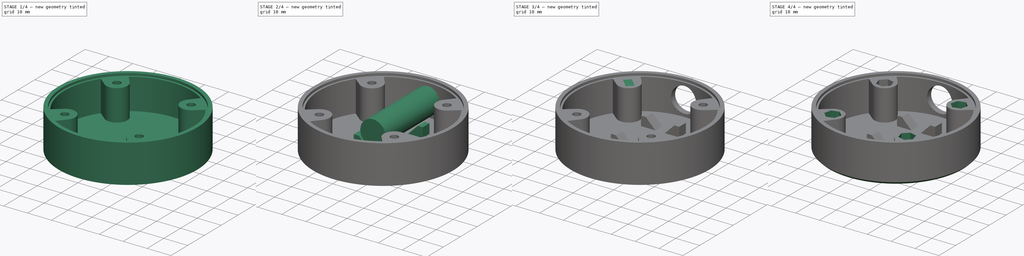
[diagram: build sequence overview — one tinted view per stage of 4, left to right]
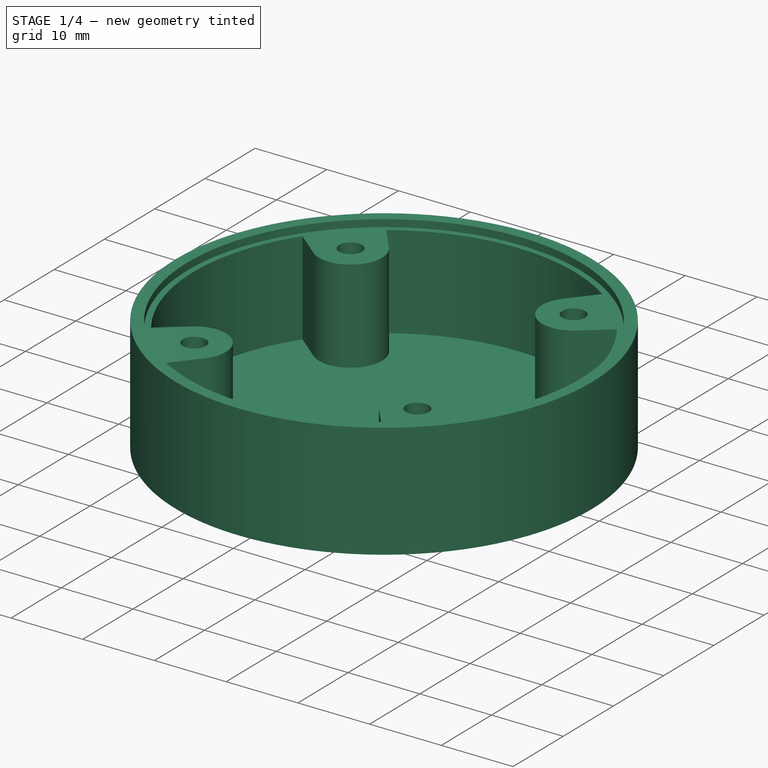
[diagram: stage 1 of 4 — iso view after this stage's code; geometry added in this stage tinted green]
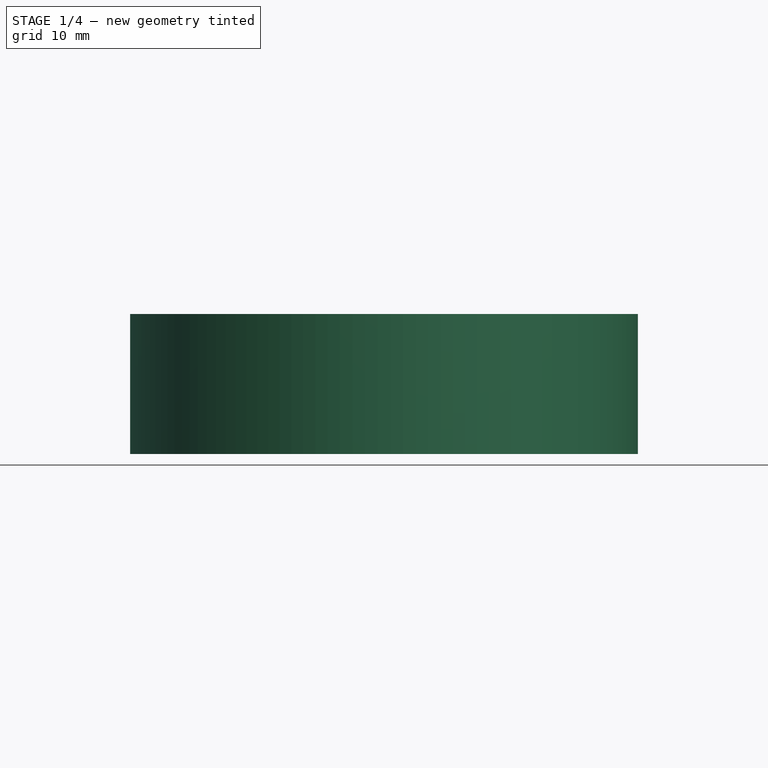
[diagram: stage 1 of 4 — front view after this stage's code; geometry added in this stage tinted green]
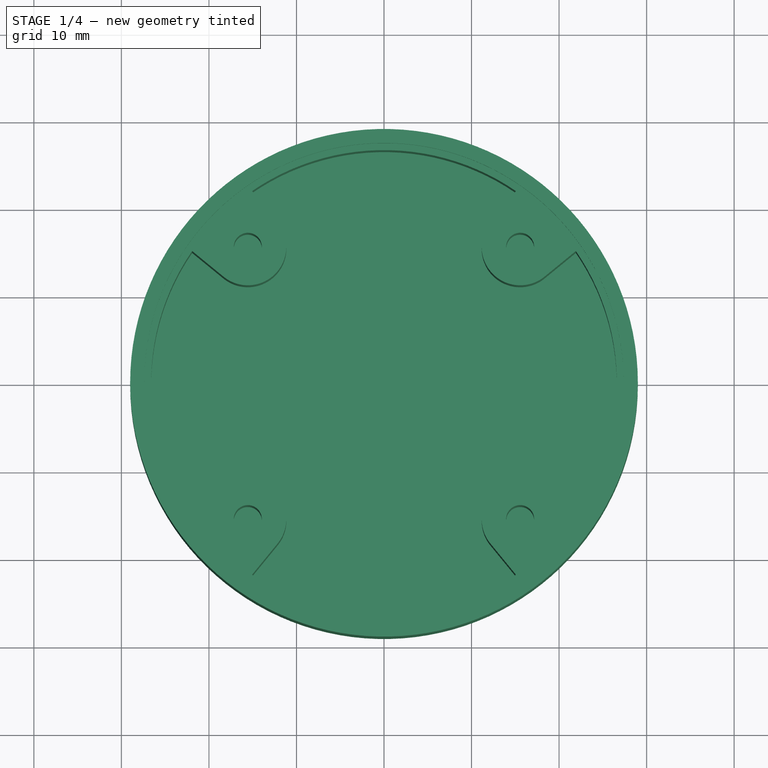
[diagram: stage 1 of 4 — top view after this stage's code; geometry added in this stage tinted green]
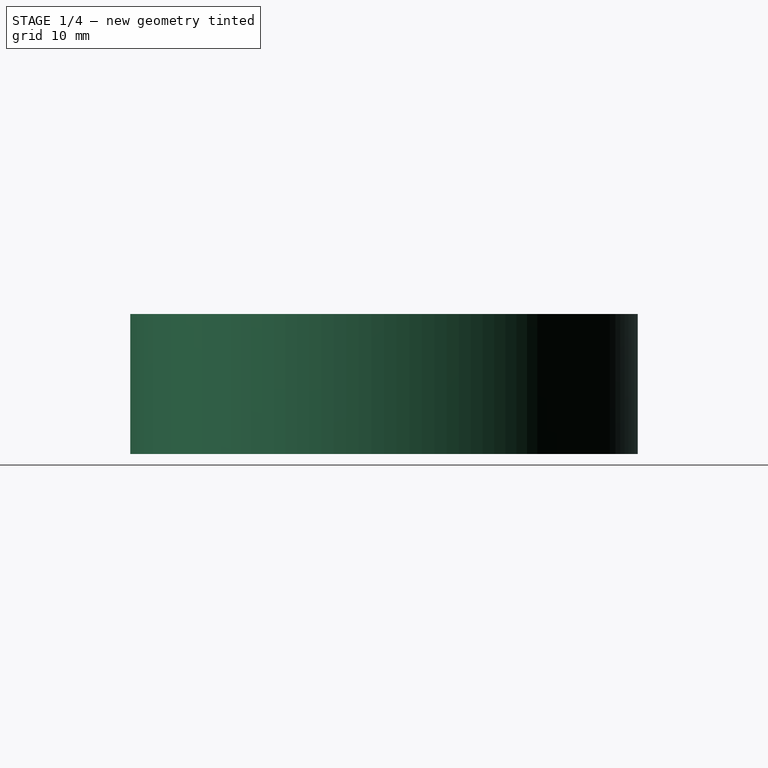
[diagram: stage 1 of 4 — right view after this stage's code; geometry added in this stage tinted green]
FCSTD DOCUMENT  (FreeCAD 0.15R4671 (Git))
Label: laser_enclosure
License: CreativeCommons Attribution-ShareAlike
LicenseURL: http://creativecommons.org/licenses/by-sa/4.0/
objects: Sketcher::SketchObject×5, PartDesign::Pocket×3, PartDesign::Pad×2, Part::Cut×2, Part::Cylinder×1, Part::Prism×1, Part::FeaturePython×1, Part::Chamfer×1
note: 21 computed .brp shape members not serialized (recipe doc carries the construction recipe); baked Part::Feature solids carry a one-line shape summary decoded from their .brp

FEATURE [Sketcher::SketchObject] Sketch011
  sketch-geometry (1):
    g0: Circle CenterX=0 CenterY=0 CenterZ=0 NormalX=0 NormalY=0 NormalZ=1 Radius=29
  constraints (2):
    c: Coincident(g0,g-1)
    c: Radius(g0) = 29
FEATURE [PartDesign::Pad] Pad006
  Length = 16
  Length2 = 100
  Sketch = -> Sketch011
  Type = 0
FEATURE [Sketcher::SketchObject] Sketch
  ExternalGeometry = -> [Pad006]
  Placement = pos=(0,0,16) rot=(0,0,1;0rad)
  Support = -> Pad006 [Face3]
  sketch-geometry (1):
    g0: Circle CenterX=0 CenterY=0 CenterZ=0 NormalX=0 NormalY=0 NormalZ=1 Radius=27.4
  constraints (2):
    c: Coincident(g0,g-1)
    c: Radius(g0) = 27.4
FEATURE [PartDesign::Pocket] Pocket
  Length = 1
  Sketch = -> Sketch
  Type = 0
FEATURE [Sketcher::SketchObject] Sketch012
  ExternalGeometry = -> [Pocket]
  Placement = pos=(0,0,15) rot=(0,0,1;0rad)
  Support = -> Pocket [Face5]
  sketch-geometry (23):
    g0: ArcOfCircle CenterX=0 CenterY=0 CenterZ=0 NormalX=0 NormalY=0 NormalZ=1 Radius=26.6 StartAngle=4.10996 EndAngle=5.31482
    g1: Circle [constr] CenterX=0 CenterY=0 CenterZ=0 NormalX=0 NormalY=0 NormalZ=1 Radius=22
    g2: Circle CenterX=-15.5563 CenterY=15.5563 CenterZ=0 NormalX=0 NormalY=0 NormalZ=1 Radius=1.6
    g3: Circle CenterX=-15.5563 CenterY=-15.5563 CenterZ=0 NormalX=0 NormalY=0 NormalZ=1 Radius=1.6
    g4: Circle CenterX=15.5563 CenterY=-15.5563 CenterZ=0 NormalX=0 NormalY=0 NormalZ=1 Radius=1.6
    g5: Circle CenterX=15.5563 CenterY=15.5563 CenterZ=0 NormalX=0 NormalY=0 NormalZ=1 Radius=1.6
    g6: LineSegment StartX=-21.9174 StartY=-15.0728 StartZ=0 EndX=-18.3409 EndY=-12.1495 EndZ=0
    g7: LineSegment StartX=-15.0728 StartY=-21.9174 StartZ=0 EndX=-12.1495 EndY=-18.3409 EndZ=0
    g8: ArcOfCircle CenterX=-15.5563 CenterY=-15.5563 CenterZ=0 NormalX=0 NormalY=0 NormalZ=1 Radius=4.4 StartAngle=5.59795 EndAngle=8.53921
    g9: LineSegment StartX=15.0728 StartY=21.9174 StartZ=0 EndX=12.1495 EndY=18.3409 EndZ=0
    g10: LineSegment StartX=21.9174 StartY=15.0728 StartZ=0 EndX=18.3409 EndY=12.1495 EndZ=0
    g11: ArcOfCircle CenterX=15.5563 CenterY=15.5563 CenterZ=0 NormalX=0 NormalY=0 NormalZ=1 Radius=4.4 StartAngle=2.45636 EndAngle=5.39762
    g12: ArcOfCircle CenterX=0 CenterY=0 CenterZ=0 NormalX=0 NormalY=0 NormalZ=1 Radius=26.6 StartAngle=0.968367 EndAngle=2.17323
    g13: LineSegment StartX=15.0728 StartY=-21.9174 StartZ=0 EndX=12.1495 EndY=-18.3409 EndZ=0
    g14: LineSegment StartX=21.9174 StartY=-15.0728 StartZ=0 EndX=18.3409 EndY=-12.1495 EndZ=0
    g15: ArcOfCircle CenterX=15.5563 CenterY=-15.5563 CenterZ=0 NormalX=0 NormalY=0 NormalZ=1 Radius=4.4 StartAngle=0.885566 EndAngle=3.82682
    g16: ArcOfCircle CenterX=0 CenterY=0 CenterZ=0 NormalX=0 NormalY=0 NormalZ=1 Radius=26.6 StartAngle=5.68076 EndAngle=6.88561
    g17: LineSegment StartX=-21.9174 StartY=15.0728 StartZ=0 EndX=-18.3409 EndY=12.1495 EndZ=0
    g18: LineSegment StartX=-15.0728 StartY=21.9174 StartZ=0 EndX=-12.1495 EndY=18.3409 EndZ=0
    g19: ArcOfCircle CenterX=-15.5563 CenterY=15.5563 CenterZ=0 NormalX=0 NormalY=0 NormalZ=1 Radius=4.4 StartAngle=4.02716 EndAngle=6.96842
    g20: ArcOfCircle CenterX=0 CenterY=0 CenterZ=0 NormalX=0 NormalY=0 NormalZ=1 Radius=26.6 StartAngle=2.53916 EndAngle=3.74402
    g21: LineSegment [constr] StartX=-19.3747 StartY=19.3747 StartZ=0 EndX=15.5563 EndY=-15.5563 EndZ=0
    g22: LineSegment [constr] StartX=-15.5563 StartY=-15.5563 StartZ=0 EndX=15.5563 EndY=15.5563 EndZ=0
  constraints (71):
    c: Coincident(g0,g-1)
    c: Radius(g0) = 26.6
    c: Coincident(g1,g-1)
    c: Radius(g1) = 22
    c: Equal(g5,g2)
    c: Equal(g2,g3)
    c: Equal(g3,g4)
    c: Radius(g2) = 1.6
    c: Coincident(g8,g3)
    c: Coincident(g8,g7)
    c: Coincident(g8,g6)
    c: Tangent(g6,g8)
    c: Tangent(g7,g8)
    c: Coincident(g0,g7)
    c: Coincident(g20,g6)
    c: Radius(g8) = 4.4
    c: Coincident(g11,g5)
    c: Coincident(g11,g9)
    c: Tangent(g11,g10)
    c: Tangent(g11,g9)
    c: Equal(g0,g12)
    c: Coincident(g16,g10)
    c: Coincident(g12,g9)
    c: Coincident(g0,g12)
    c: Equal(g11,g8)
    c: Coincident(g15,g4)
    c: Coincident(g15,g13)
    c: Coincident(g15,g14)
    c: Tangent(g15,g13)
    c: Tangent(g15,g14)
    c: Equal(g0,g16)
    c: Coincident(g0,g13)
    c: PointOnObject(g16,g14)
    c: Coincident(g0,g16)
    c: Equal(g15,g8)
    c: Coincident(g14,g16)
    c: Coincident(g19,g2)
    c: Coincident(g19,g17)
    c: Coincident(g19,g18)
    c: Tangent(g17,g19)
    c: Tangent(g18,g19)
    c: Equal(g12,g20)
    c: Coincident(g12,g18)
    c: Coincident(g20,g17)
    c: Coincident(g12,g20)
    c: Equal(g8,g19)
    c: PointOnObject(g6,g1)
    c: PointOnObject(g7,g1)
    c: PointOnObject(g3,g1)
    c: PointOnObject(g13,g1)
    c: PointOnObject(g14,g1)
    c: PointOnObject(g4,g1)
    c: PointOnObject(g5,g1)
    c: PointOnObject(g9,g1)
    c: Coincident(g11,g10)
    c: PointOnObject(g10,g1)
    c: PointOnObject(g2,g1)
    c: PointOnObject(g17,g1)
    c: PointOnObject(g18,g1)
    c: PointOnObject(g-1,g21)
    c: Angle(g21,g-1) = 0.785398
    c: PointOnObject(g-1,g22)
    c: Angle(g22) = 0.785398
    c: PointOnObject(g3,g22)
    c: PointOnObject(g5,g22)
    c: PointOnObject(g4,g21)
    c: PointOnObject(g2,g21)
    c: PointOnObject(g21,g-3)
    c: PointOnObject(g22,g1)
    c: PointOnObject(g21,g1)
    c: PointOnObject(g22,g1)
FEATURE [PartDesign::Pocket] Pocket003
  Length = 13
  Sketch = -> Sketch012
  Type = 0
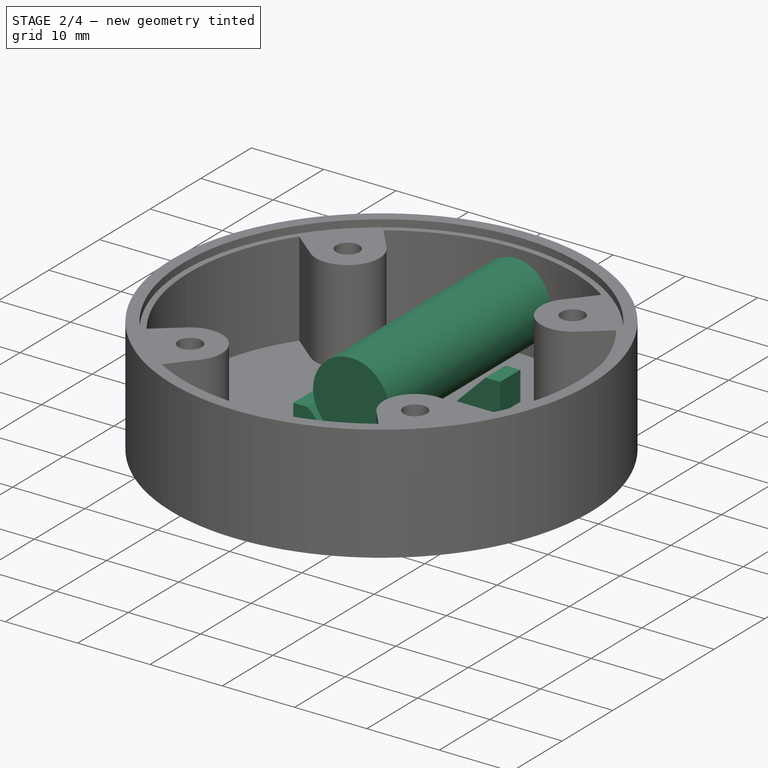
[diagram: stage 2 of 4 — iso view after this stage's code; geometry added in this stage tinted green]
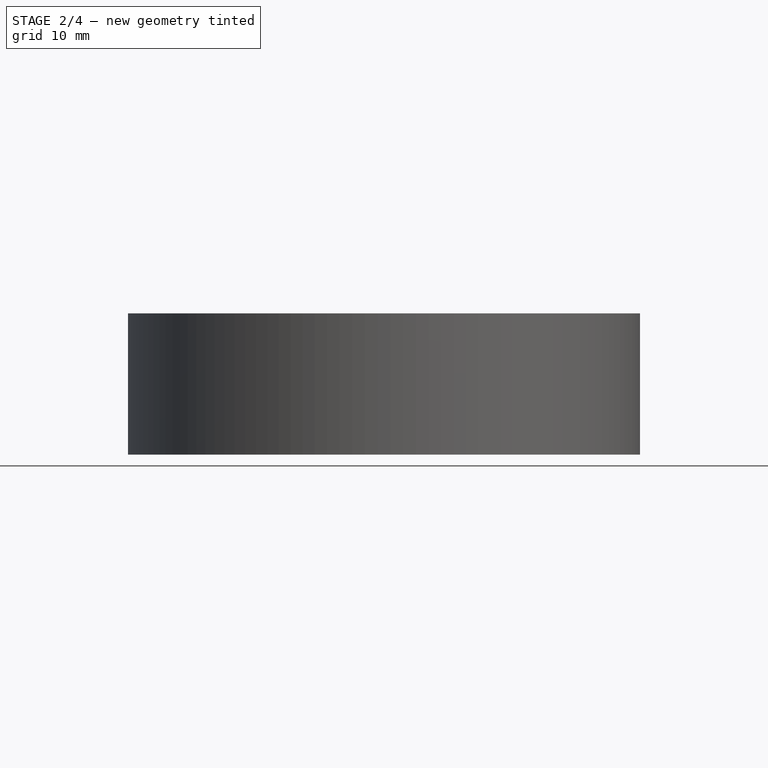
[diagram: stage 2 of 4 — front view after this stage's code; geometry added in this stage tinted green]
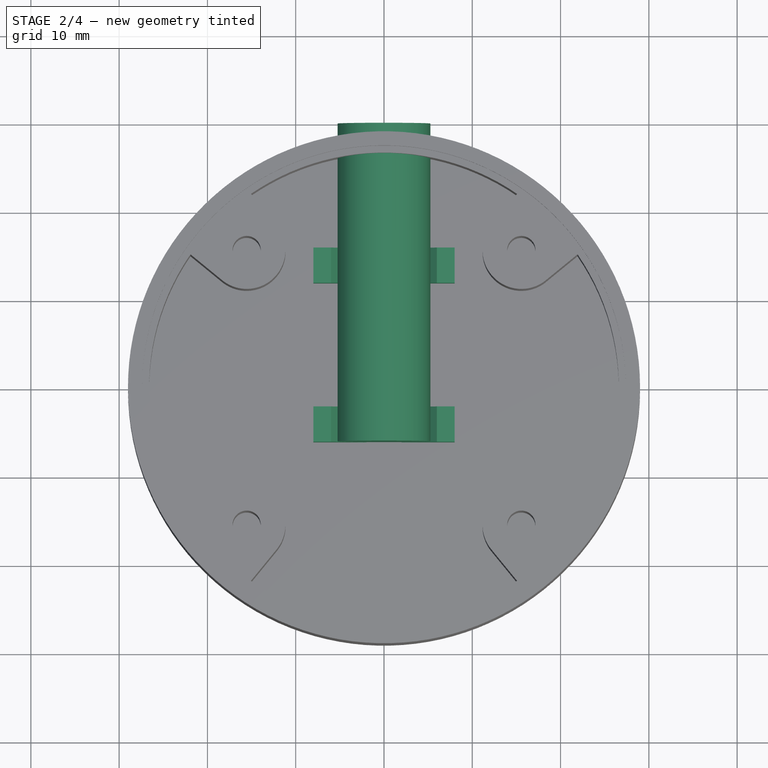
[diagram: stage 2 of 4 — top view after this stage's code; geometry added in this stage tinted green]
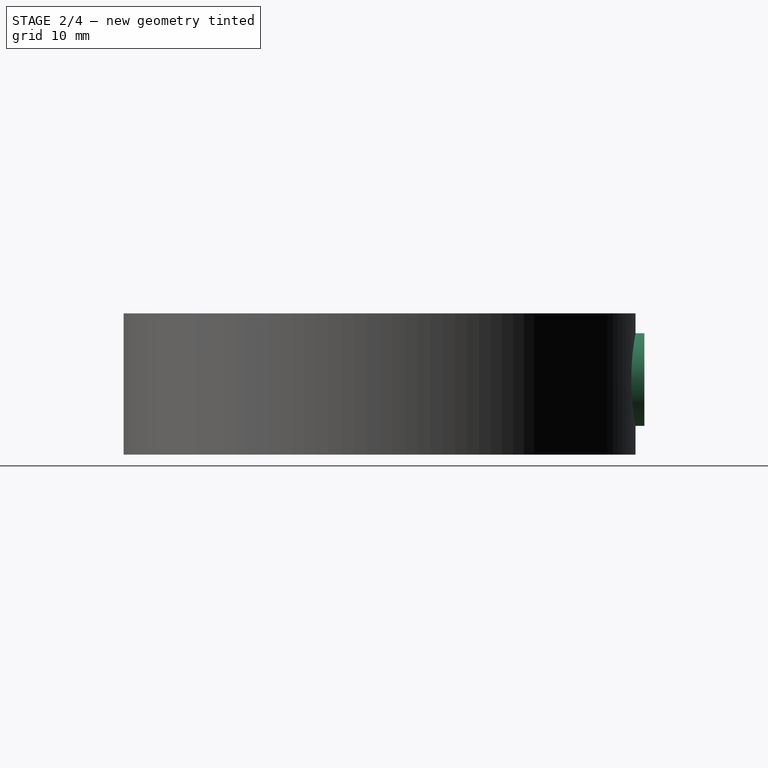
[diagram: stage 2 of 4 — right view after this stage's code; geometry added in this stage tinted green]
FEATURE [Sketcher::SketchObject] Sketch013
  Placement = pos=(0,0,2) rot=(0,0,1;0rad)
  Support = -> Pocket003 [Face27]
  sketch-geometry (9):
    g0: LineSegment StartX=-8 StartY=16 StartZ=0 EndX=8 EndY=16 EndZ=0
    g1: LineSegment StartX=8 StartY=16 StartZ=0 EndX=8 EndY=12 EndZ=0
    g2: LineSegment StartX=8 StartY=12 StartZ=0 EndX=-8 EndY=12 EndZ=0
    g3: LineSegment StartX=-8 StartY=12 StartZ=0 EndX=-8 EndY=16 EndZ=0
    g4: LineSegment StartX=8 StartY=-2 StartZ=0 EndX=8 EndY=-6 EndZ=0
    g5: LineSegment StartX=8 StartY=-6 StartZ=0 EndX=-8 EndY=-6 EndZ=0
    g6: LineSegment StartX=-8 StartY=-6 StartZ=0 EndX=-8 EndY=-2 EndZ=0
    g7: LineSegment [constr] StartX=0 StartY=0 StartZ=0 EndX=0 EndY=27 EndZ=0
    g8: LineSegment StartX=-8 StartY=-2 StartZ=0 EndX=8 EndY=-2 EndZ=0
  constraints (28):
    c: Coincident(g0,g1)
    c: Coincident(g1,g2)
    c: Coincident(g2,g3)
    c: Coincident(g3,g0)
    c: Horizontal(g0)
    c: Horizontal(g2)
    c: Vertical(g1)
    c: Vertical(g3)
    c: Coincident(g4,g5)
    c: Coincident(g5,g6)
    c: Horizontal(g5)
    c: Vertical(g4)
    c: Vertical(g6)
    c: Equal(g0,g2)
    c: Distance(g0) = 16
    c: Equal(g3,g6)
    c: Distance(g1) = 4
    c: PointOnObject(g6,g3)
    c: Coincident(g7,g-1)
    c: Vertical(g7)
    c: DistanceY(g7,g0) = -11
    c: DistanceY(g0,g5) = -22
    c: Coincident(g8,g6)
    c: Coincident(g8,g4)
    c: Horizontal(g8)
    c: Equal(g0,g8)
    c: Symmetric(g0,g0,g7)
    c: DistanceY(g-1,g4) = -2
FEATURE [Part::Cylinder] Cylinder003  label="Laser pointer"
  Angle = 360
  Height = 36
  Placement = pos=(0,30,8.5) rot=(1,0,0;1.5708rad)
  Radius = 5.25
FEATURE [PartDesign::Pad] Pad
  Length = 4
  Length2 = 100
  Sketch = -> Sketch013
  Type = 0
FEATURE [Sketcher::SketchObject] Sketch014
  ExternalGeometry = -> [Pad]
  Placement = pos=(0,-6,0) rot=(1,0,0;1.5708rad)
  Support = -> Pad [Face36]
  sketch-geometry (5):
    g0: Circle [constr] CenterX=0 CenterY=8.5 CenterZ=0 NormalX=0 NormalY=0 NormalZ=1 Radius=6
    g1: LineSegment StartX=5.98528 StartY=6 StartZ=0 EndX=1.98528 EndY=2 EndZ=0
    g2: LineSegment StartX=-5.98528 StartY=6 StartZ=0 EndX=-1.98528 EndY=2 EndZ=0
    g3: LineSegment StartX=-5.98528 StartY=6 StartZ=0 EndX=5.98528 EndY=6 EndZ=0
    g4: LineSegment StartX=-1.98528 StartY=2 StartZ=0 EndX=1.98528 EndY=2 EndZ=0
  constraints (13):
    c: PointOnObject(g0,g-2)
    c: Radius(g0) = 6
    c: Tangent(g1,g0)
    c: Symmetric(g2,g1,g-2)
    c: Symmetric(g2,g1,g-2)
    c: PointOnObject(g1,g-4)
    c: Coincident(g3,g2)
    c: Coincident(g3,g1)
    c: Coincident(g4,g2)
    c: Coincident(g4,g1)
    c: PointOnObject(g-3,g4)
    c: DistanceY(g0,g-3) = -6.5
    c: Angle(g-4,g1) = 0.785398
FEATURE [PartDesign::Pocket] Pocket004
  Length = 24
  Sketch = -> Sketch014
  Type = 0
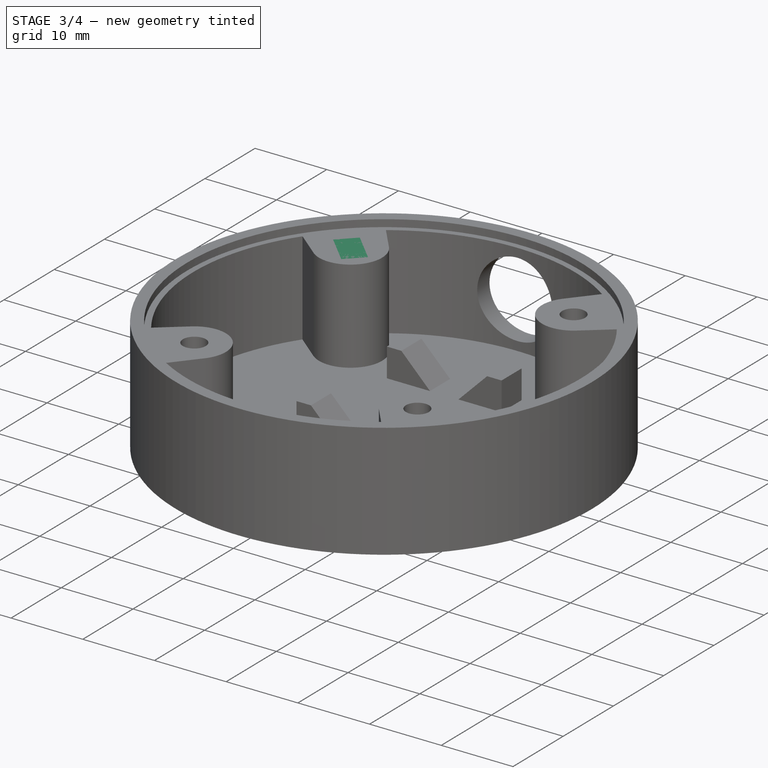
[diagram: stage 3 of 4 — iso view after this stage's code; geometry added in this stage tinted green]
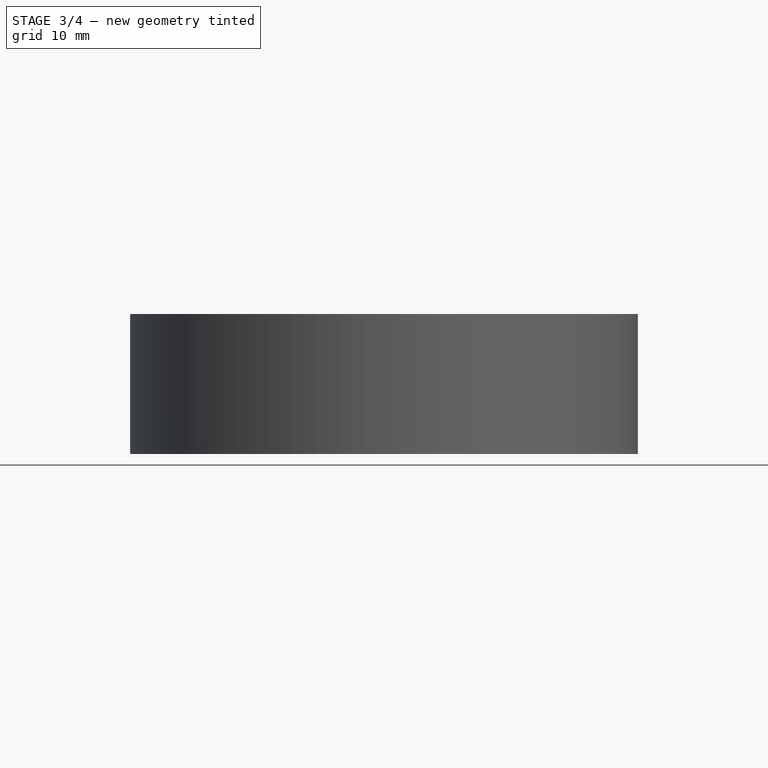
[diagram: stage 3 of 4 — front view after this stage's code; geometry added in this stage tinted green]
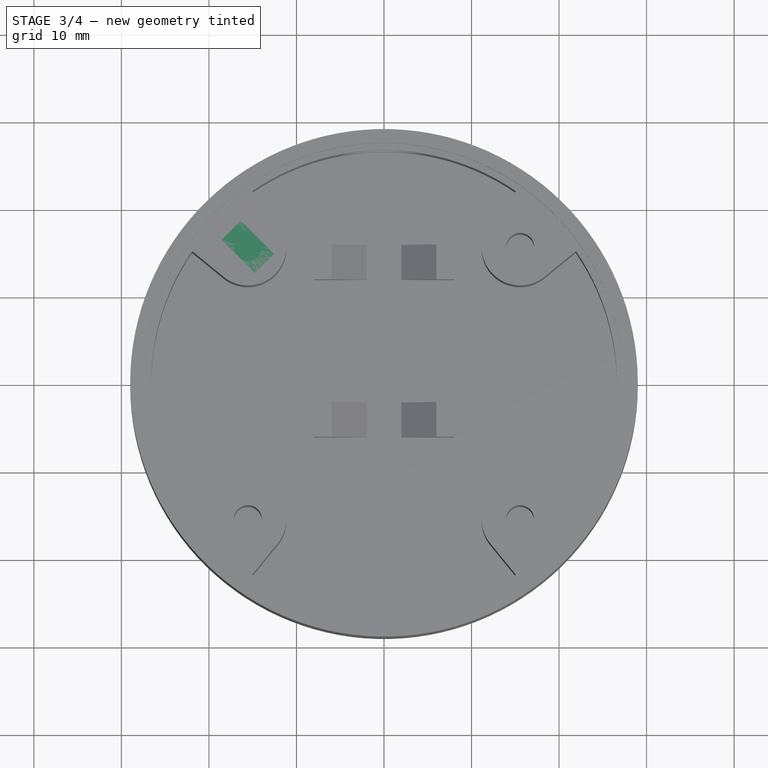
[diagram: stage 3 of 4 — top view after this stage's code; geometry added in this stage tinted green]
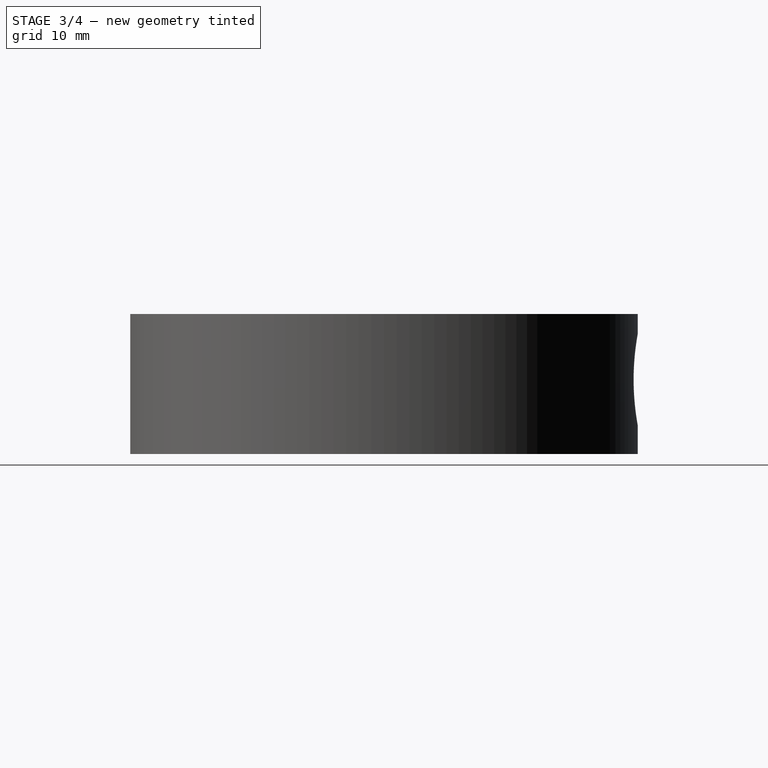
[diagram: stage 3 of 4 — right view after this stage's code; geometry added in this stage tinted green]
FEATURE [Part::Prism] Prism002  label="Nut"
  Circumradius = 3.1
  Height = 2.6
  Placement = pos=(-15.5563,15.5563,12.4) rot=(0,0,1;0.785398rad)
  Polygon = 6
FEATURE [Part::Cut] Cut
  Base = -> Pocket004
  Tool = -> Cylinder003
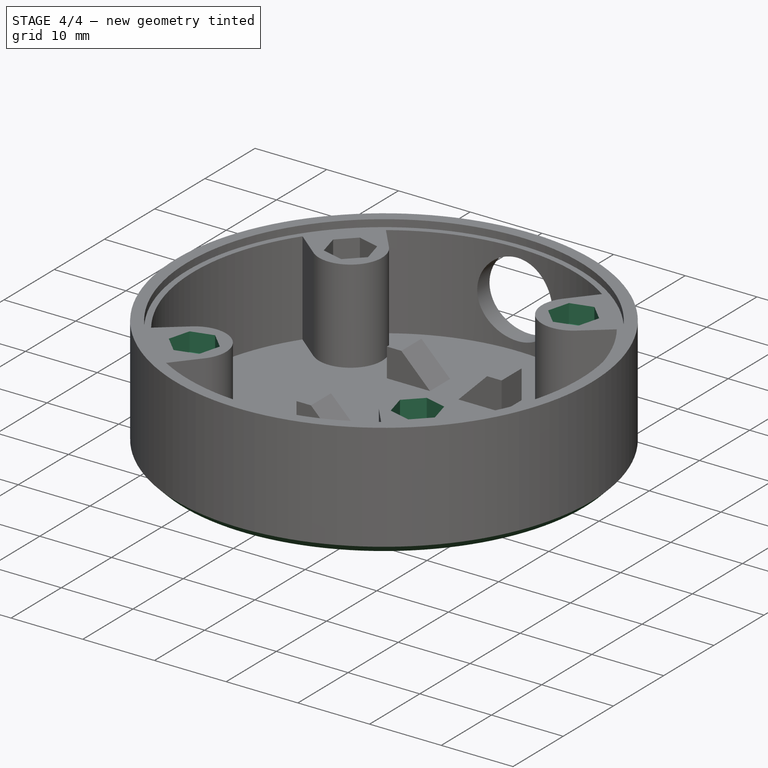
[diagram: stage 4 of 4 — iso view after this stage's code; geometry added in this stage tinted green]
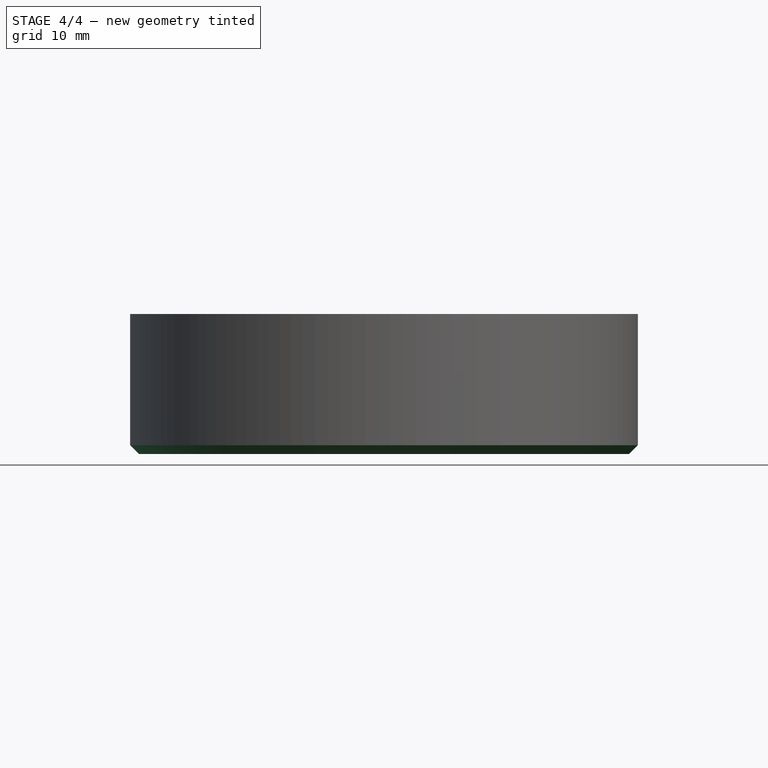
[diagram: stage 4 of 4 — front view after this stage's code; geometry added in this stage tinted green]
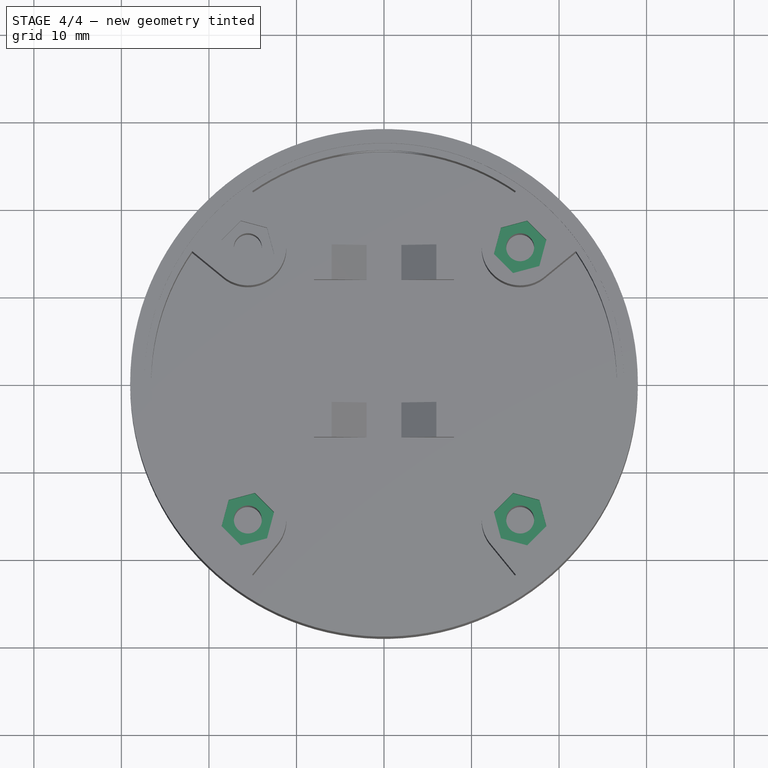
[diagram: stage 4 of 4 — top view after this stage's code; geometry added in this stage tinted green]
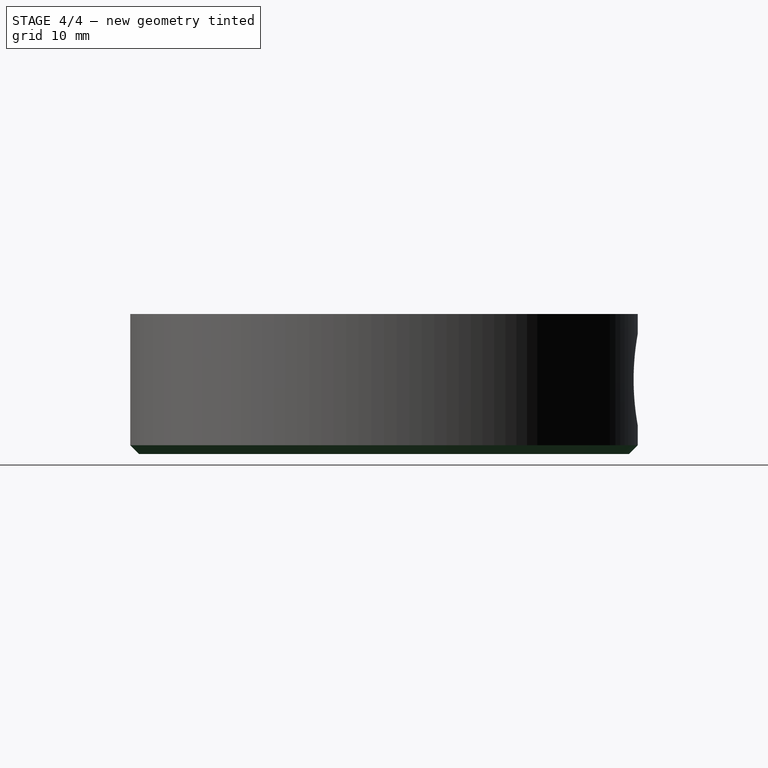
[diagram: stage 4 of 4 — right view after this stage's code; geometry added in this stage tinted green]
FEATURE [Part::FeaturePython] Array  # Draft array (typed FeaturePython)
  Angle = 360
  ArrayType = 1
  Axis = (0,0,1)
  Base = -> Prism002
  Center = (0,0,0)
  Fuse = false
  IntervalAxis = (0,0,0)
  IntervalX = (1,0,0)
  IntervalY = (0,1,0)
  IntervalZ = (0,0,0)
  NumberPolar = 4
  NumberX = 2
  NumberY = 2
  NumberZ = 1
FEATURE [Part::Cut] Cut001
  Base = -> Cut
  Tool = -> Array
FEATURE [Part::Chamfer] Chamfer  label="Laser enclosure"
  Base = -> Cut001
  Edges = 1 edges r=1: [Edge1]
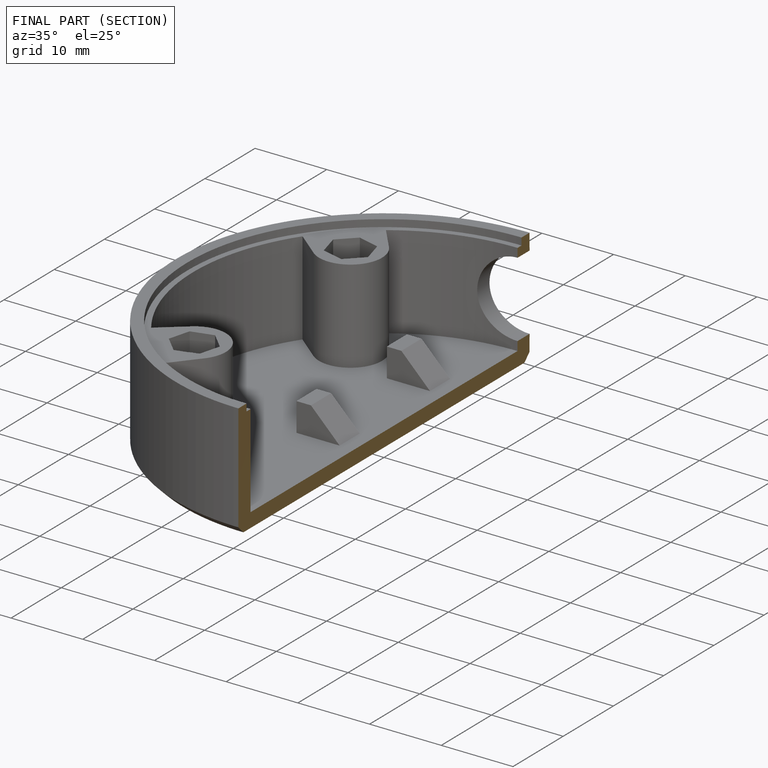
[diagram: finished part — half-section view (interior)]
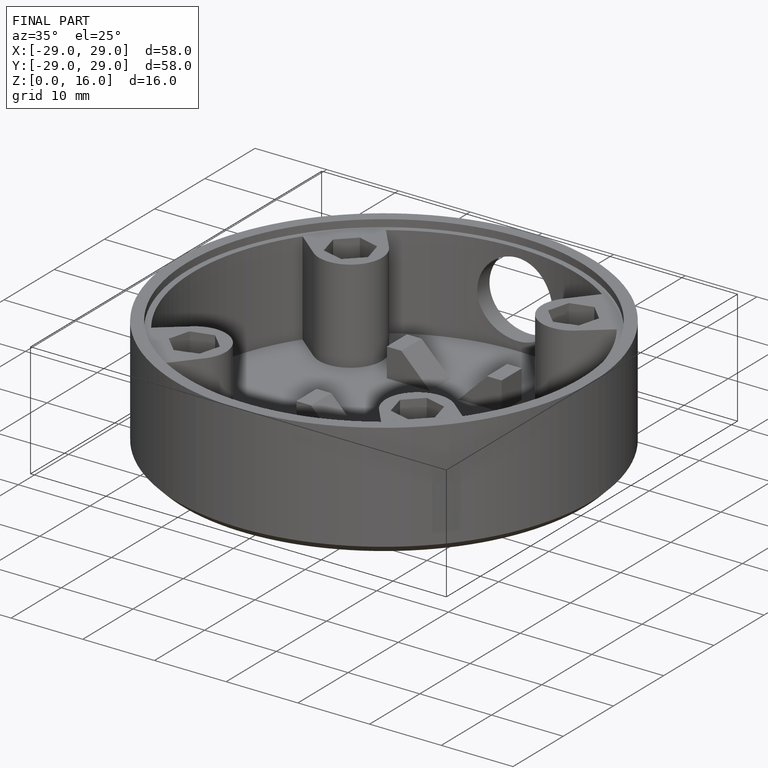
[diagram: finished part — iso view with bounding-box wireframe]
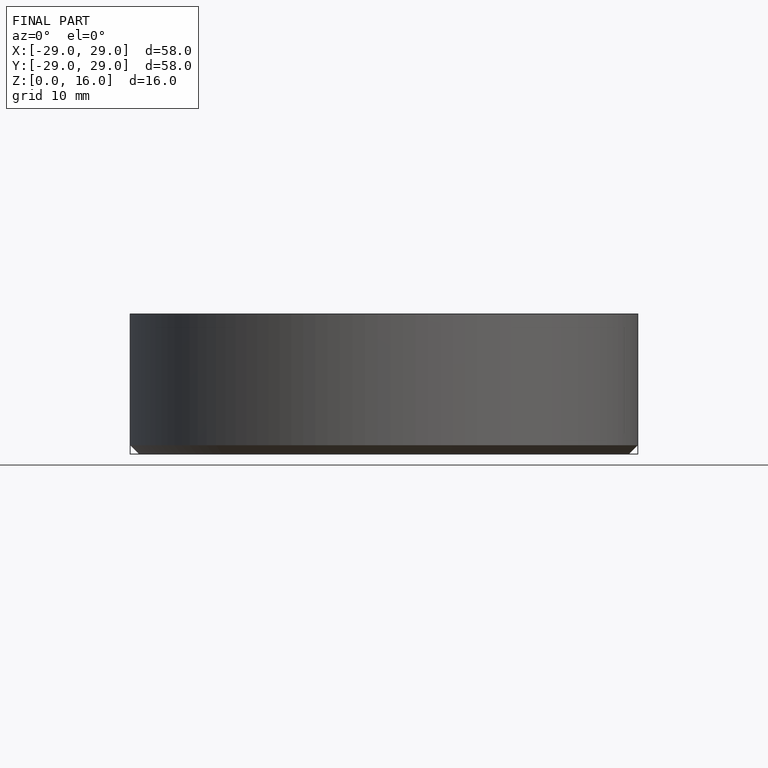
[diagram: finished part — front view with bounding-box wireframe]
